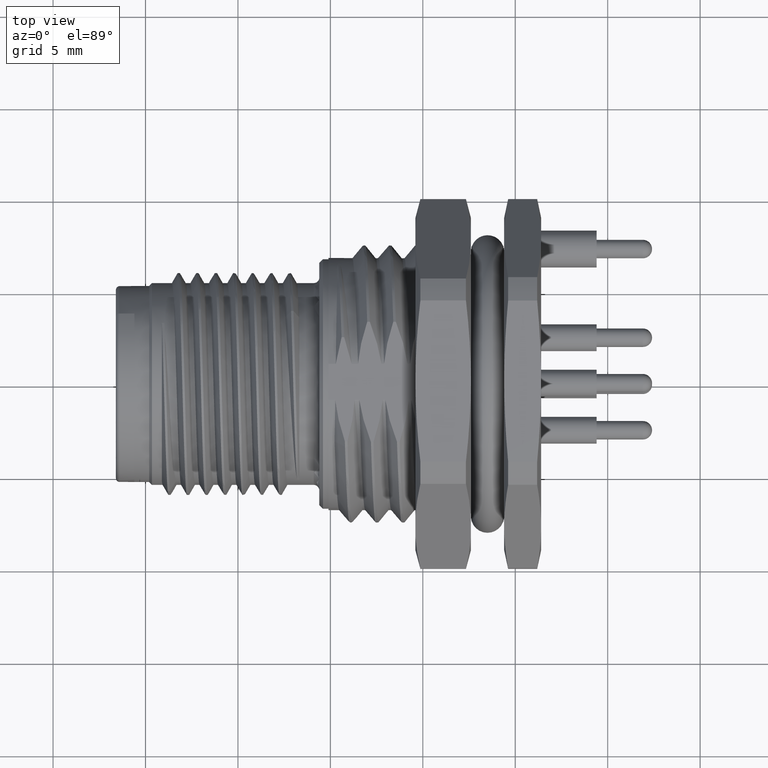
[diagram: clean part render]
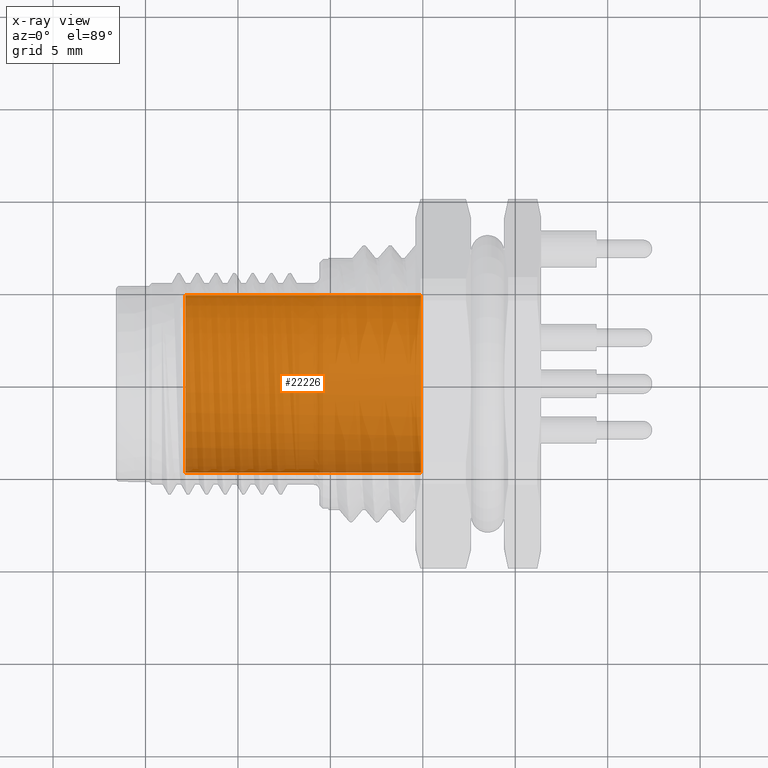
[diagram: x-ray — body ghosted, one internal face saturated and labeled with its STEP entity id]
A machine part, top view, then the same camera in x-ray: the body is ghosted and one INTERNAL B-rep face — a face not visible from any outside direction — is saturated and labeled: STEP entity #22226.
In plain terms, the highlighted cylindrical surface (partial cylindrical patch) has radius 4.8 mm, axis along (1, 0, 0).
Its self-contained STEP definition (entity closure, byte-faithful):
#22113=DIRECTION('',(-1.E0,0.E0,0.E0));
#22114=VECTOR('',#22113,1.274292857858E1);
#22115=CARTESIAN_POINT('',(1.49E1,-4.8E0,0.E0));
#22116=LINE('',#22115,#22114);
#22117=CARTESIAN_POINT('',(1.49E1,0.E0,0.E0));
#22118=DIRECTION('',(1.E0,0.E0,0.E0));
#22119=DIRECTION('',(0.E0,-1.E0,0.E0));
#22120=AXIS2_PLACEMENT_3D('',#22117,#22118,#22119);
#22122=DIRECTION('',(1.E0,0.E0,-1.677696142623E-13));
#22123=VECTOR('',#22122,1.274292857858E1);
#22124=CARTESIAN_POINT('',(2.157071421424E0,4.8E0,-3.802065851868E-13));
#22125=LINE('',#22124,#22123);
#22174=CARTESIAN_POINT('',(2.157071421424E0,0.E0,0.E0));
#22175=DIRECTION('',(1.E0,0.E0,0.E0));
#22176=DIRECTION('',(0.E0,-7.071067811865E-1,-7.071067811865E-1));
#22177=AXIS2_PLACEMENT_3D('',#22174,#22175,#22176);
#22184=CARTESIAN_POINT('',(2.157071421424E0,0.E0,0.E0));
#22185=DIRECTION('',(1.E0,0.E0,0.E0));
#22186=DIRECTION('',(0.E0,-1.E0,0.E0));
#22187=AXIS2_PLACEMENT_3D('',#22184,#22185,#22186);
#22194=CARTESIAN_POINT('',(2.157071421424E0,-4.8E0,0.E0));
#22196=VERTEX_POINT('',#22194);
#22197=CARTESIAN_POINT('',(2.157071421424E0,-3.394112549695E0,
-3.394112549695E0));
#22198=VERTEX_POINT('',#22197);
#22199=CARTESIAN_POINT('',(2.157071421424E0,4.8E0,-3.800176513595E-13));
#22200=VERTEX_POINT('',#22199);
#22205=CARTESIAN_POINT('',(1.49E1,4.8E0,-2.518166905637E-12));
#22206=CARTESIAN_POINT('',(1.49E1,-4.8E0,0.E0));
#22207=VERTEX_POINT('',#22205);
#22208=VERTEX_POINT('',#22206);
#22209=CARTESIAN_POINT('',(-4.E-1,0.E0,0.E0));
#22210=DIRECTION('',(1.E0,0.E0,0.E0));
#22211=DIRECTION('',(0.E0,-1.E0,0.E0));
#22212=AXIS2_PLACEMENT_3D('',#22209,#22210,#22211);
#22213=CYLINDRICAL_SURFACE('',#22212,4.8E0);
#22215=ORIENTED_EDGE('',*,*,#22214,.F.);
#22217=ORIENTED_EDGE('',*,*,#22216,.T.);
#22219=ORIENTED_EDGE('',*,*,#22218,.F.);
#22221=ORIENTED_EDGE('',*,*,#22220,.F.);
#22223=ORIENTED_EDGE('',*,*,#22222,.F.);
#22224=EDGE_LOOP('',(#22215,#22217,#22219,#22221,#22223));
#22225=FACE_OUTER_BOUND('',#22224,.F.);
#22226=ADVANCED_FACE('',(#22225),#22213,.T.);
#22121=CIRCLE('',#22120,4.8E0);
#22178=CIRCLE('',#22177,4.8E0);
#22188=CIRCLE('',#22187,4.8E0);
#22214=EDGE_CURVE('',#22208,#22196,#22116,.T.);
#22216=EDGE_CURVE('',#22208,#22207,#22121,.T.);
#22218=EDGE_CURVE('',#22200,#22207,#22125,.T.);
#22220=EDGE_CURVE('',#22198,#22200,#22178,.T.);
#22222=EDGE_CURVE('',#22196,#22198,#22188,.T.);